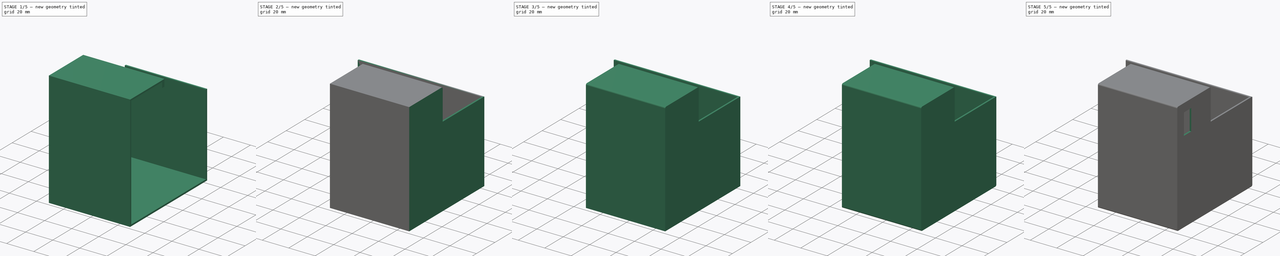
[diagram: build sequence overview — one tinted view per stage of 5, left to right]
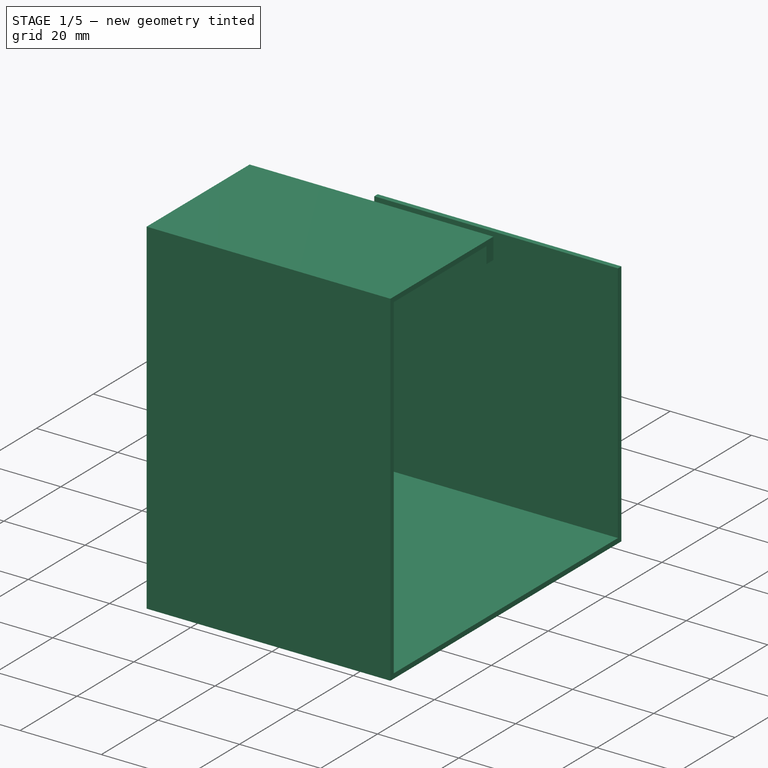
[diagram: stage 1 of 5 — iso view after this stage's code; geometry added in this stage tinted green]
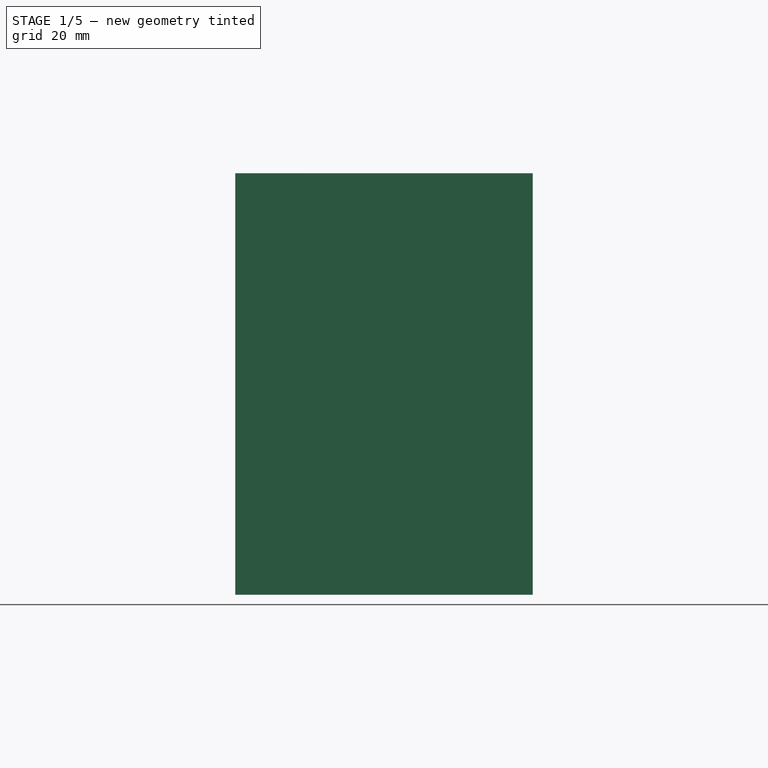
[diagram: stage 1 of 5 — front view after this stage's code; geometry added in this stage tinted green]
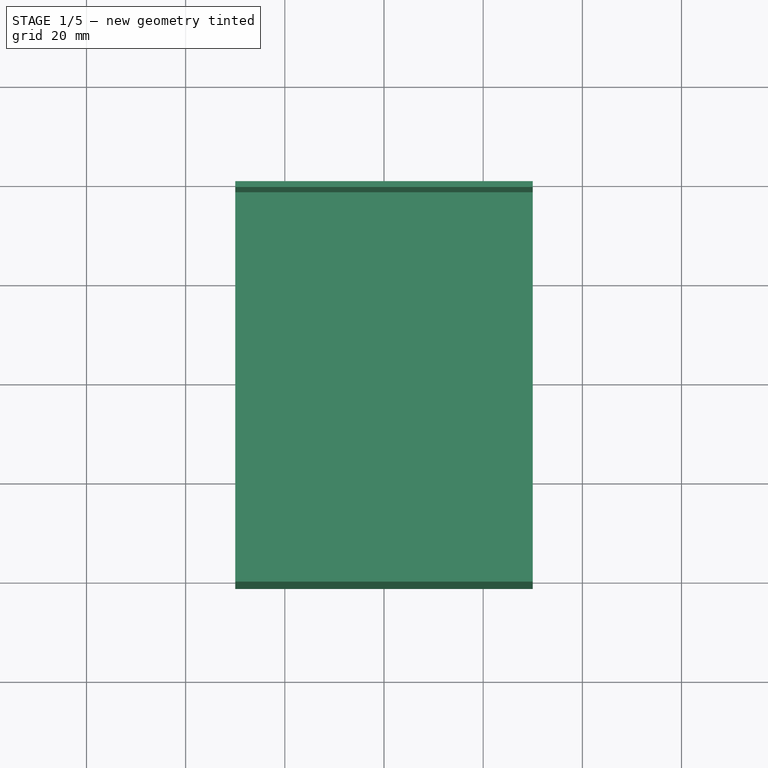
[diagram: stage 1 of 5 — top view after this stage's code; geometry added in this stage tinted green]
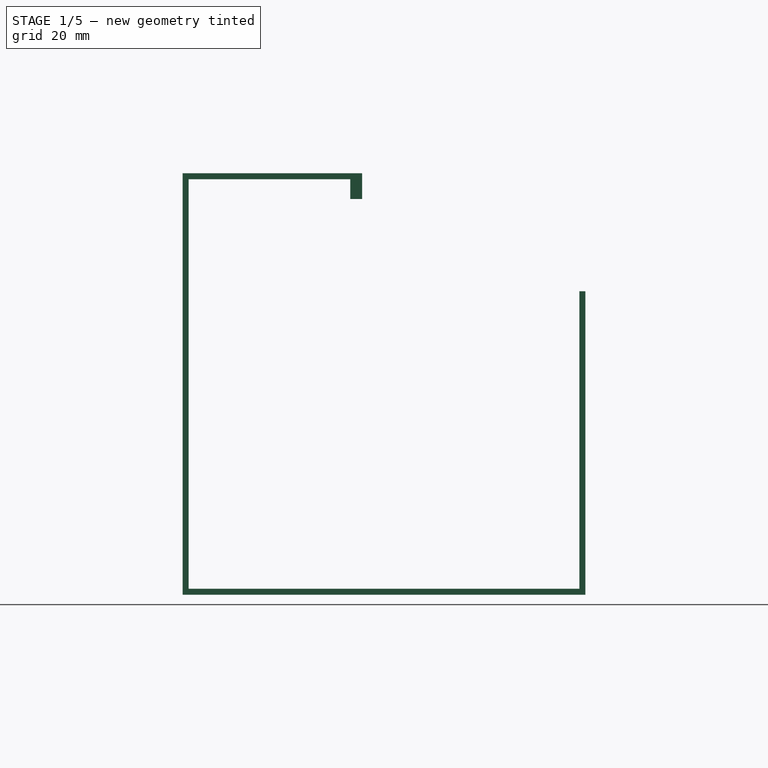
[diagram: stage 1 of 5 — right view after this stage's code; geometry added in this stage tinted green]
FCSTD DOCUMENT  (FreeCAD 1.0R39319 (Git))
Label: holder
License: All rights reserved
LicenseURL: https://en.wikipedia.org/wiki/All_rights_reserved
objects: PartDesign::Fillet×16, Sketcher::SketchObject×11, PartDesign::Pad×10, PartDesign::Pocket×1, PartDesign::Body×1
note: 104 computed .brp shape members not serialized (recipe doc carries the construction recipe); baked Part::Feature solids carry a one-line shape summary decoded from their .brp

FEATURE [Sketcher::SketchObject] Sketch
  ArcFitTolerance = 1e-06
  AttachmentSupport = -> [XZ_Plane]
  FullyConstrained = true
  MakeInternals = false
  MapMode = 5
  Placement = pos=(0,0,0) rot=(1,0,0;1.5708rad)
  sketch-geometry (5):
    g0: LineSegment StartX=-30 StartY=-42.5 StartZ=0 EndX=30 EndY=-42.5 EndZ=0
    g1: LineSegment StartX=30 StartY=-42.5 StartZ=0 EndX=30 EndY=42.5 EndZ=0
    g2: LineSegment StartX=30 StartY=42.5 StartZ=0 EndX=-30 EndY=42.5 EndZ=0
    g3: LineSegment StartX=-30 StartY=42.5 StartZ=0 EndX=-30 EndY=-42.5 EndZ=0
    g4: GeomPoint [constr] X=0 Y=0 Z=0
  constraints (12):
    c: Coincident(g0,g1)
    c: Coincident(g1,g2)
    c: Coincident(g2,g3)
    c: Coincident(g3,g0)
    c: Horizontal(g0)
    c: Horizontal(g2)
    c: Vertical(g1)
    c: Vertical(g3)
    c: Symmetric(g2,g0,g4)
    c: Coincident(g4,g-1)
    c: DistanceX(g2,g2) = 60
    c: DistanceY(g1,g1) = 85
FEATURE [PartDesign::Pad] Pad
  Direction = (0,-1,2e-16)
  Length = 1.2
  Length2 = 10
  Placement = pos=(0,0,0) rot=(1,0,0;1.5708rad)
  Profile = -> Sketch
  ReferenceAxis = -> Sketch [N_Axis]
  Refine = true
  Suppressed = false
  Type = 0
FEATURE [Sketcher::SketchObject] Sketch002
  ArcFitTolerance = 1e-06
  AttachmentSupport = -> [Pad]
  ExternalGeometry = -> [Pad]
  FullyConstrained = true
  MakeInternals = false
  MapMode = 5
  Placement = pos=(0,0,0) rot=(-1,0,0;1.5708rad)
  sketch-geometry (4):
    g0: LineSegment StartX=30 StartY=42.5 StartZ=0 EndX=-30 EndY=42.5 EndZ=0
    g1: LineSegment StartX=-30 StartY=42.5 StartZ=0 EndX=-30 EndY=41.3 EndZ=0
    g2: LineSegment StartX=-30 StartY=41.3 StartZ=0 EndX=30 EndY=41.3 EndZ=0
    g3: LineSegment StartX=30 StartY=41.3 StartZ=0 EndX=30 EndY=42.5 EndZ=0
  constraints (10):
    c: Coincident(g0,g1)
    c: Coincident(g1,g2)
    c: Coincident(g2,g3)
    c: Coincident(g3,g0)
    c: Horizontal(g2)
    c: Vertical(g1)
    c: Vertical(g3)
    c: Coincident(g-3,g0)
    c: Coincident(g0,g-3)
    c: DistanceY(g1,g1) = 1.2
FEATURE [PartDesign::Pad] Pad001
  BaseFeature = -> Pad
  Direction = (0,1,2e-16)
  Length = 80
  Length2 = 10
  Placement = pos=(0,0,0) rot=(1,0,0;1.5708rad)
  Profile = -> Sketch002
  ReferenceAxis = -> Sketch002 [N_Axis]
  Refine = true
  Suppressed = false
  Type = 0
FEATURE [Sketcher::SketchObject] Sketch003
  ArcFitTolerance = 1e-06
  AttachmentSupport = -> [Pad001]
  ExternalGeometry = -> [Pad001]
  FullyConstrained = true
  MakeInternals = false
  MapMode = 5
  Placement = pos=(0,9.2e-15,-41.3) rot=(0,0,1;3.14159rad)
  sketch-geometry (4):
    g0: LineSegment StartX=-30 StartY=-80 StartZ=0 EndX=30 EndY=-80 EndZ=0
    g1: LineSegment StartX=30 StartY=-80 StartZ=0 EndX=30 EndY=-78.8 EndZ=0
    g2: LineSegment StartX=30 StartY=-78.8 StartZ=0 EndX=-30 EndY=-78.8 EndZ=0
    g3: LineSegment StartX=-30 StartY=-78.8 StartZ=0 EndX=-30 EndY=-80 EndZ=0
  constraints (10):
    c: Coincident(g0,g1)
    c: Coincident(g1,g2)
    c: Coincident(g2,g3)
    c: Coincident(g3,g0)
    c: Horizontal(g2)
    c: Vertical(g1)
    c: Vertical(g3)
    c: Coincident(g0,g-3)
    c: Coincident(g-3,g0)
    c: DistanceY(g1,g1) = 1.2
FEATURE [PartDesign::Pad] Pad002
  BaseFeature = -> Pad001
  Direction = (0,0,1)
  Length = 60
  Length2 = 10
  Placement = pos=(0,0,0) rot=(1,0,0;1.5708rad)
  Profile = -> Sketch003
  ReferenceAxis = -> Sketch003 [N_Axis]
  Refine = true
  Suppressed = false
  Type = 0
FEATURE [Sketcher::SketchObject] Sketch004
  ArcFitTolerance = 1e-06
  AttachmentSupport = -> [Pad002]
  ExternalGeometry = -> [Pad002]
  FullyConstrained = true
  MakeInternals = false
  MapMode = 5
  Placement = pos=(0,0,0) rot=(-1,0,0;1.5708rad)
  sketch-geometry (4):
    g0: LineSegment StartX=30 StartY=-42.5 StartZ=0 EndX=30 EndY=-41.3 EndZ=0
    g1: LineSegment StartX=30 StartY=-41.3 StartZ=0 EndX=-30 EndY=-41.3 EndZ=0
    g2: LineSegment StartX=-30 StartY=-41.3 StartZ=0 EndX=-30 EndY=-42.5 EndZ=0
    g3: LineSegment StartX=-30 StartY=-42.5 StartZ=0 EndX=30 EndY=-42.5 EndZ=0
  constraints (10):
    c: Coincident(g0,g1)
    c: Coincident(g1,g2)
    c: Coincident(g2,g3)
    c: Coincident(g3,g0)
    c: Vertical(g0)
    c: Vertical(g2)
    c: Horizontal(g1)
    c: Coincident(g0,g-3)
    c: Coincident(g-3,g2)
    c: DistanceY(g2,g2) = 1.2
FEATURE [PartDesign::Pad] Pad003
  BaseFeature = -> Pad002
  Direction = (0,1,2e-16)
  Length = 35
  Length2 = 10
  Placement = pos=(0,0,0) rot=(1,0,0;1.5708rad)
  Profile = -> Sketch004
  ReferenceAxis = -> Sketch004 [N_Axis]
  Refine = true
  Suppressed = false
  Type = 0
FEATURE [Sketcher::SketchObject] Sketch006
  ArcFitTolerance = 1e-06
  AttachmentSupport = -> [Pad003]
  ExternalGeometry = -> [Pad003]
  FullyConstrained = true
  MakeInternals = false
  MapMode = 5
  Placement = pos=(0,-9.2e-15,41.3) rot=(1,0,0;3.14159rad)
  sketch-geometry (4):
    g0: LineSegment StartX=-30 StartY=-35 StartZ=0 EndX=30 EndY=-35 EndZ=0
    g1: LineSegment StartX=30 StartY=-35 StartZ=0 EndX=30 EndY=-32.6 EndZ=0
    g2: LineSegment StartX=30 StartY=-32.6 StartZ=0 EndX=-30 EndY=-32.6 EndZ=0
    g3: LineSegment StartX=-30 StartY=-32.6 StartZ=0 EndX=-30 EndY=-35 EndZ=0
  constraints (10):
    c: Coincident(g0,g1)
    c: Coincident(g1,g2)
    c: Coincident(g2,g3)
    c: Coincident(g3,g0)
    c: Horizontal(g2)
    c: Vertical(g1)
    c: Vertical(g3)
    c: Coincident(g0,g-3)
    c: Coincident(g-3,g0)
    c: DistanceY(g3,g3) = 2.4
FEATURE [PartDesign::Pad] Pad004
  BaseFeature = -> Pad003
  Direction = (0,0,-1)
  Length = 4
  Length2 = 10
  Placement = pos=(0,0,0) rot=(1,0,0;1.5708rad)
  Profile = -> Sketch006
  ReferenceAxis = -> Sketch006 [N_Axis]
  Refine = true
  Suppressed = false
  Type = 0
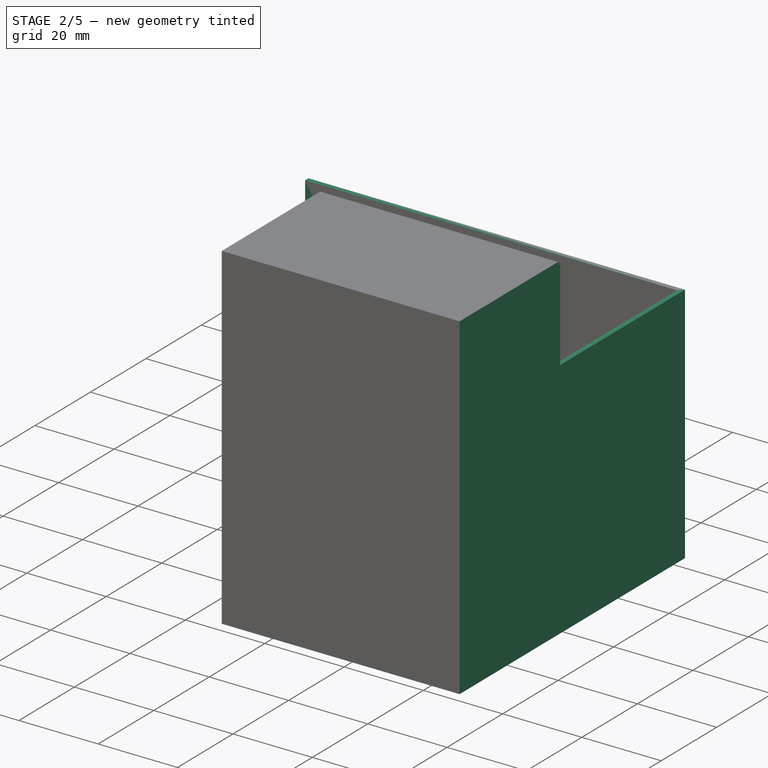
[diagram: stage 2 of 5 — iso view after this stage's code; geometry added in this stage tinted green]
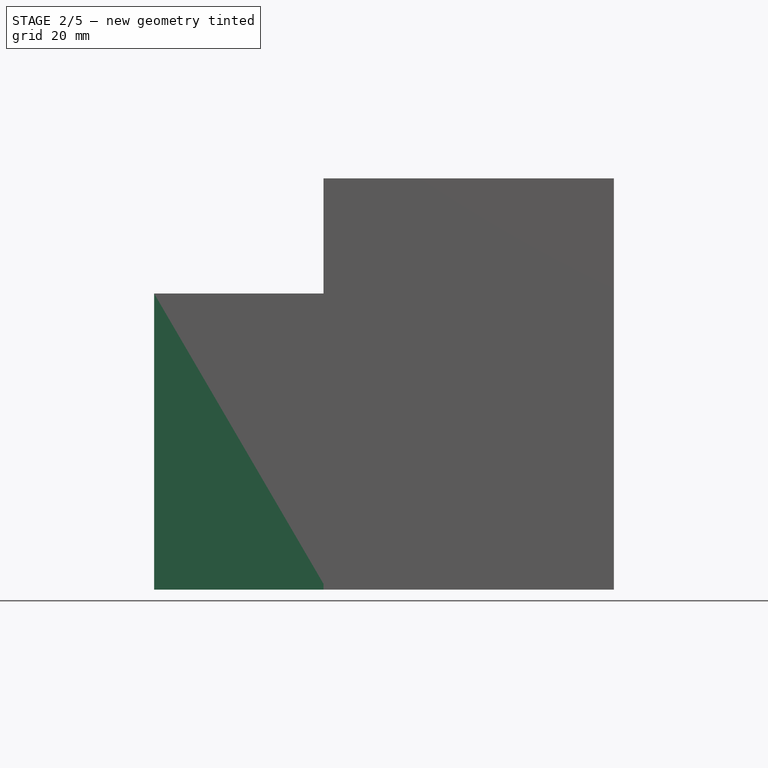
[diagram: stage 2 of 5 — front view after this stage's code; geometry added in this stage tinted green]
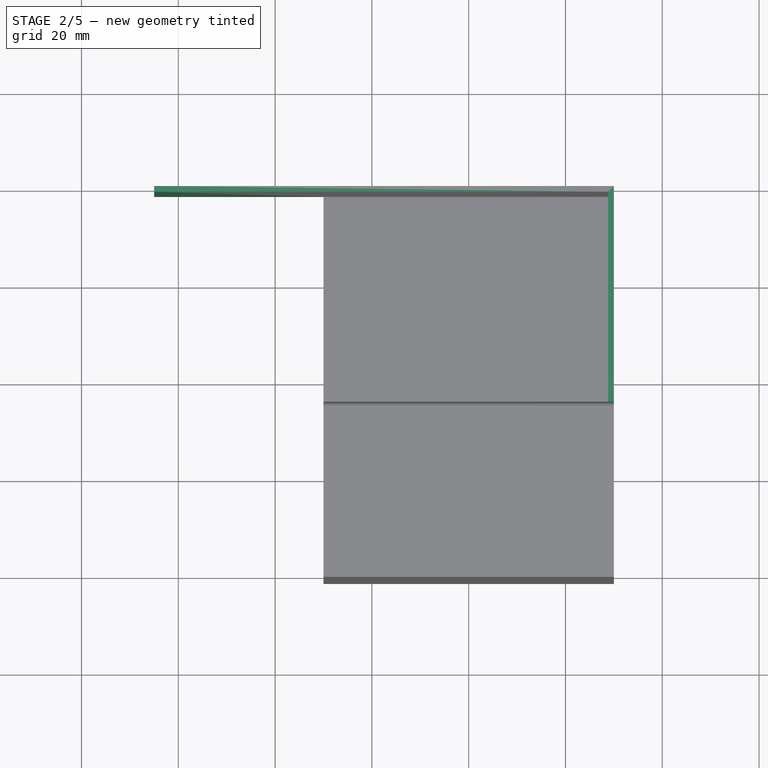
[diagram: stage 2 of 5 — top view after this stage's code; geometry added in this stage tinted green]
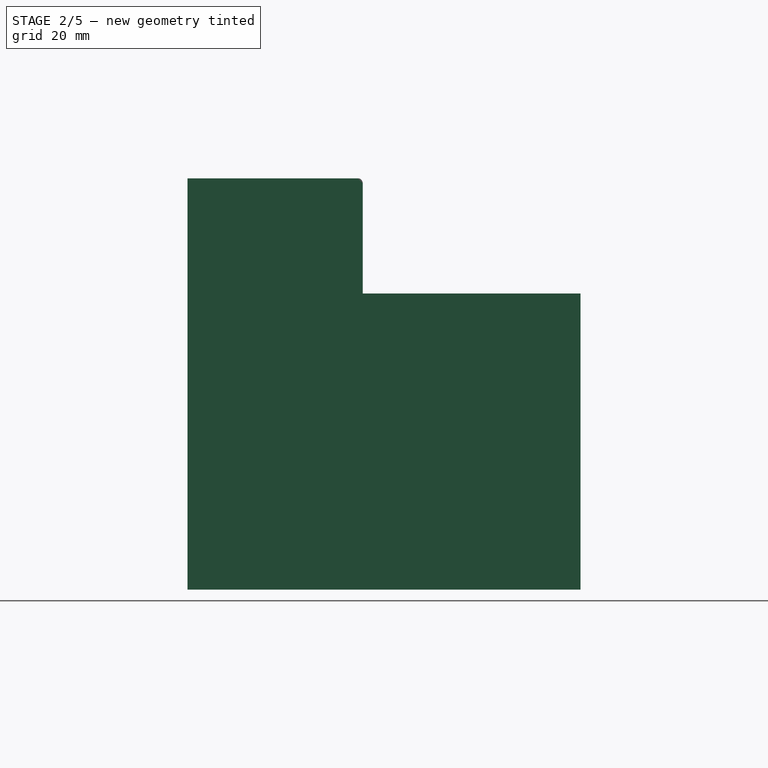
[diagram: stage 2 of 5 — right view after this stage's code; geometry added in this stage tinted green]
FEATURE [Sketcher::SketchObject] Sketch005
  ArcFitTolerance = 1e-06
  AttachmentSupport = -> [Pad004]
  ExternalGeometry = -> [Pad003]
  FullyConstrained = true
  MakeInternals = false
  MapMode = 5
  Placement = pos=(0,0,37.3) rot=(1,0,0;3.14159rad)
  sketch-geometry (8):
    g0: LineSegment StartX=30 StartY=-35 StartZ=0 EndX=30 EndY=-32.6 EndZ=0
    g1: LineSegment StartX=30 StartY=-32.6 StartZ=0 EndX=18.3 EndY=-32.6 EndZ=0
    g2: LineSegment StartX=18.3 StartY=-32.6 StartZ=0 EndX=18.3 EndY=-35 EndZ=0
    g3: LineSegment StartX=18.3 StartY=-35 StartZ=0 EndX=30 EndY=-35 EndZ=0
    g4: LineSegment StartX=-30 StartY=-35 StartZ=0 EndX=-18.3 EndY=-35 EndZ=0
    g5: LineSegment StartX=-18.3 StartY=-35 StartZ=0 EndX=-18.3 EndY=-32.6 EndZ=0
    g6: LineSegment StartX=-18.3 StartY=-32.6 StartZ=0 EndX=-30 EndY=-32.6 EndZ=0
    g7: LineSegment StartX=-30 StartY=-32.6 StartZ=0 EndX=-30 EndY=-35 EndZ=0
  constraints (22):
    c: Coincident(g0,g1)
    c: Coincident(g1,g2)
    c: Coincident(g2,g3)
    c: Coincident(g3,g0)
    c: Vertical(g0)
    c: Vertical(g2)
    c: Horizontal(g1)
    c: Horizontal(g3)
    c: Coincident(g0,g-3)
    c: Coincident(g4,g5)
    c: Coincident(g5,g6)
    c: Coincident(g6,g7)
    c: Coincident(g7,g4)
    c: Horizontal(g4)
    c: Horizontal(g6)
    c: Vertical(g5)
    c: Vertical(g7)
    c: Coincident(g4,g-3)
    c: DistanceY(g0,g0) = 2.4
    c: DistanceX(g4,g2) = 36.6
    c: DistanceY(g4,g6) = 2.4
    c: DistanceX(g1,g1) = 11.7
FEATURE [PartDesign::Pad] Pad005
  BaseFeature = -> Pad004
  Direction = (0,0,-1)
  Length = 18.6
  Length2 = 10
  Placement = pos=(0,0,0) rot=(1,0,0;1.5708rad)
  Profile = -> Sketch005
  ReferenceAxis = -> Sketch005 [N_Axis]
  Refine = true
  Suppressed = false
  Type = 0
FEATURE [Sketcher::SketchObject] Sketch007
  ArcFitTolerance = 1e-06
  AttachmentSupport = -> [Pad005]
  ExternalGeometry = -> [Pad005]
  FullyConstrained = true
  MakeInternals = false
  MapMode = 5
  Placement = pos=(-18.3,0,0) rot=(0.707107,0,0.707107;3.14159rad)
  sketch-geometry (4):
    g0: LineSegment StartX=19.5 StartY=-33.4 StartZ=0 EndX=19.5 EndY=-34.2 EndZ=0
    g1: LineSegment StartX=19.5 StartY=-34.2 StartZ=0 EndX=36.5 EndY=-34.2 EndZ=0
    g2: LineSegment StartX=36.5 StartY=-34.2 StartZ=0 EndX=36.5 EndY=-33.4 EndZ=0
    g3: LineSegment StartX=36.5 StartY=-33.4 StartZ=0 EndX=19.5 EndY=-33.4 EndZ=0
  constraints (12):
    c: Coincident(g0,g1)
    c: Coincident(g1,g2)
    c: Coincident(g2,g3)
    c: Coincident(g3,g0)
    c: Vertical(g0)
    c: Vertical(g2)
    c: Horizontal(g1)
    c: Horizontal(g3)
    c: DistanceX(g-4,g0) = 0.8
    c: DistanceX(g1,g-6) = 0.8
    c: DistanceY(g-5,g0) = 0.8
    c: DistanceY(g2,g-6) = 0.8
FEATURE [PartDesign::Pad] Pad006
  BaseFeature = -> Pad005
  Direction = (1,0,-2e-16)
  Length = 10
  Length2 = 10
  Placement = pos=(0,0,0) rot=(1,0,0;1.5708rad)
  Profile = -> Sketch007
  ReferenceAxis = -> Sketch007 [N_Axis]
  Refine = true
  Suppressed = false
  Type = 2
FEATURE [Sketcher::SketchObject] Sketch009
  ArcFitTolerance = 1e-06
  AttachmentSupport = -> [Pad006]
  ExternalGeometry = -> [Pad006]
  FullyConstrained = true
  MakeInternals = false
  MapMode = 5
  Placement = pos=(-30,0,0) rot=(0.707107,0,-0.707107;3.14159rad)
  sketch-geometry (4):
    g0: LineSegment StartX=-18.7 StartY=-78.8 StartZ=0 EndX=-18.7 EndY=-80 EndZ=0
    g1: LineSegment StartX=-18.7 StartY=-80 StartZ=0 EndX=42.5 EndY=-80 EndZ=0
    g2: LineSegment StartX=42.5 StartY=-80 StartZ=0 EndX=42.5 EndY=-78.8 EndZ=0
    g3: LineSegment StartX=42.5 StartY=-78.8 StartZ=0 EndX=-18.7 EndY=-78.8 EndZ=0
  constraints (10):
    c: Coincident(g0,g1)
    c: Coincident(g1,g2)
    c: Coincident(g2,g3)
    c: Coincident(g3,g0)
    c: Vertical(g0)
    c: Vertical(g2)
    c: Horizontal(g1)
    c: Horizontal(g3)
    c: Coincident(g0,g-3)
    c: Coincident(g1,g-4)
FEATURE [PartDesign::Pad] Pad007
  BaseFeature = -> Pad006
  Direction = (-1,0,-2e-16)
  Length = 35
  Length2 = 10
  Placement = pos=(0,0,0) rot=(1,0,0;1.5708rad)
  Profile = -> Sketch009
  ReferenceAxis = -> Sketch009 [N_Axis]
  Refine = true
  Suppressed = false
  Type = 0
FEATURE [Sketcher::SketchObject] Sketch010
  ArcFitTolerance = 1e-06
  AttachmentSupport = -> [Pad007]
  ExternalGeometry = -> [Pad007]
  FullyConstrained = true
  MakeInternals = false
  MapMode = 5
  Placement = pos=(-8.88e-14,78.8,-2e-15) rot=(1,0,0;1.5708rad)
  sketch-geometry (4):
    g0: LineSegment StartX=30 StartY=18.7 StartZ=0 EndX=28.8 EndY=18.7 EndZ=0
    g1: LineSegment StartX=28.8 StartY=18.7 StartZ=0 EndX=28.8 EndY=-41.3 EndZ=0
    g2: LineSegment StartX=28.8 StartY=-41.3 StartZ=0 EndX=30 EndY=-41.3 EndZ=0
    g3: LineSegment StartX=30 StartY=-41.3 StartZ=0 EndX=30 EndY=18.7 EndZ=0
  constraints (10):
    c: Coincident(g0,g1)
    c: Coincident(g1,g2)
    c: Coincident(g2,g3)
    c: Coincident(g3,g0)
    c: Horizontal(g0)
    c: Horizontal(g2)
    c: Vertical(g1)
    c: Coincident(g0,g-3)
    c: Coincident(g2,g-3)
    c: Distance(g0,g0) = 1.2
FEATURE [PartDesign::Pad] Pad008
  BaseFeature = -> Pad007
  Direction = (1.1e-15,-1,2e-16)
  Length = 10
  Length2 = 10
  Placement = pos=(0,0,0) rot=(1,0,0;1.5708rad)
  Profile = -> Sketch010
  ReferenceAxis = -> Sketch010 [N_Axis]
  Refine = true
  Suppressed = false
  Type = 2
FEATURE [Sketcher::SketchObject] Sketch011
  ArcFitTolerance = 1e-06
  AttachmentSupport = -> [Pad008]
  ExternalGeometry = -> [Pad008]
  FullyConstrained = true
  MakeInternals = false
  MapMode = 5
  Placement = pos=(0,32.6,-8.5e-15) rot=(1,0,0;1.5708rad)
  sketch-geometry (4):
    g0: LineSegment StartX=30 StartY=41.3 StartZ=0 EndX=28.8 EndY=41.3 EndZ=0
    g1: LineSegment StartX=28.8 StartY=41.3 StartZ=0 EndX=28.8 EndY=18.7 EndZ=0
    g2: LineSegment StartX=28.8 StartY=18.7 StartZ=0 EndX=30 EndY=18.7 EndZ=0
    g3: LineSegment StartX=30 StartY=18.7 StartZ=0 EndX=30 EndY=41.3 EndZ=0
  constraints (10):
    c: Coincident(g0,g1)
    c: Coincident(g1,g2)
    c: Coincident(g2,g3)
    c: Coincident(g3,g0)
    c: Horizontal(g0)
    c: Horizontal(g2)
    c: Vertical(g1)
    c: Coincident(g0,g-3)
    c: Coincident(g-3,g2)
    c: Distance(g2,g2) = 1.2
FEATURE [PartDesign::Pad] Pad009
  BaseFeature = -> Pad008
  Direction = (0,-1,2e-16)
  Length = 10
  Length2 = 10
  Placement = pos=(0,0,0) rot=(1,0,0;1.5708rad)
  Profile = -> Sketch011
  ReferenceAxis = -> Sketch011 [N_Axis]
  Refine = true
  Suppressed = false
  Type = 2
FEATURE [PartDesign::Fillet] Fillet
  Base = -> Pad009 [Edge27]
  BaseFeature = -> Pad009
  Placement = pos=(0,0,0) rot=(1,0,0;1.5708rad)
  Radius = 1
  Refine = true
  SupportTransform = false
  Suppressed = false
  UseAllEdges = false
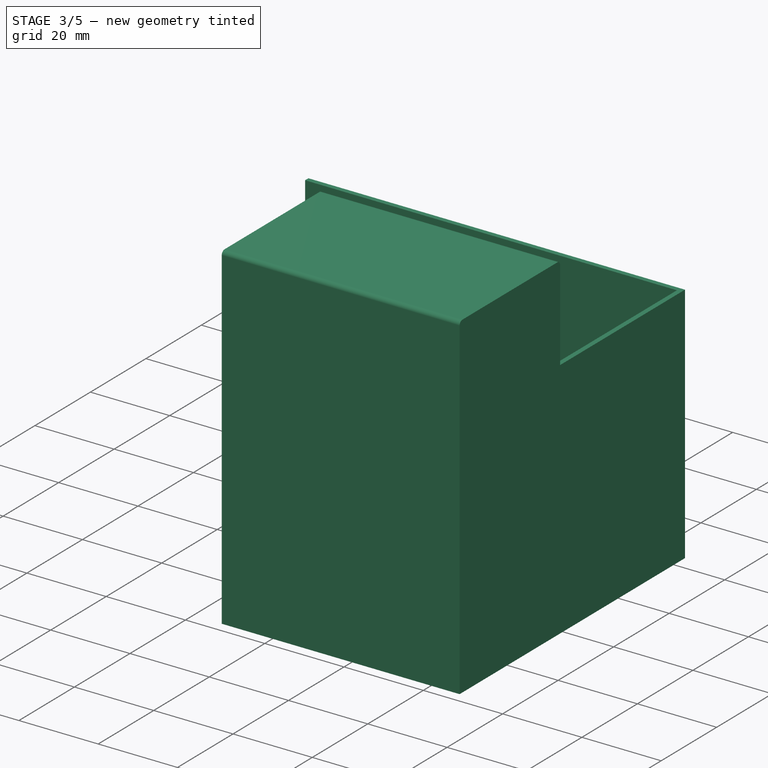
[diagram: stage 3 of 5 — iso view after this stage's code; geometry added in this stage tinted green]
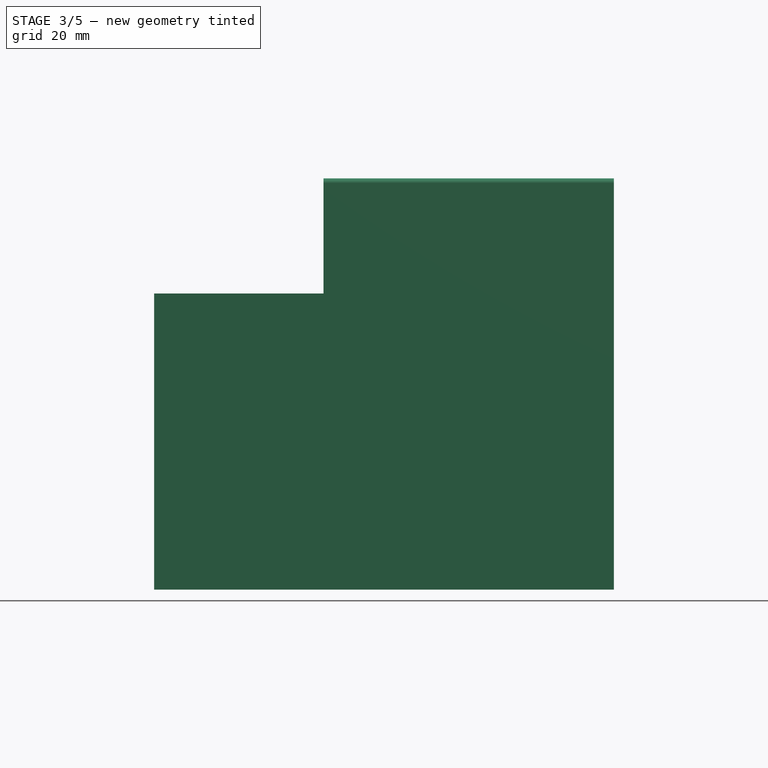
[diagram: stage 3 of 5 — front view after this stage's code; geometry added in this stage tinted green]
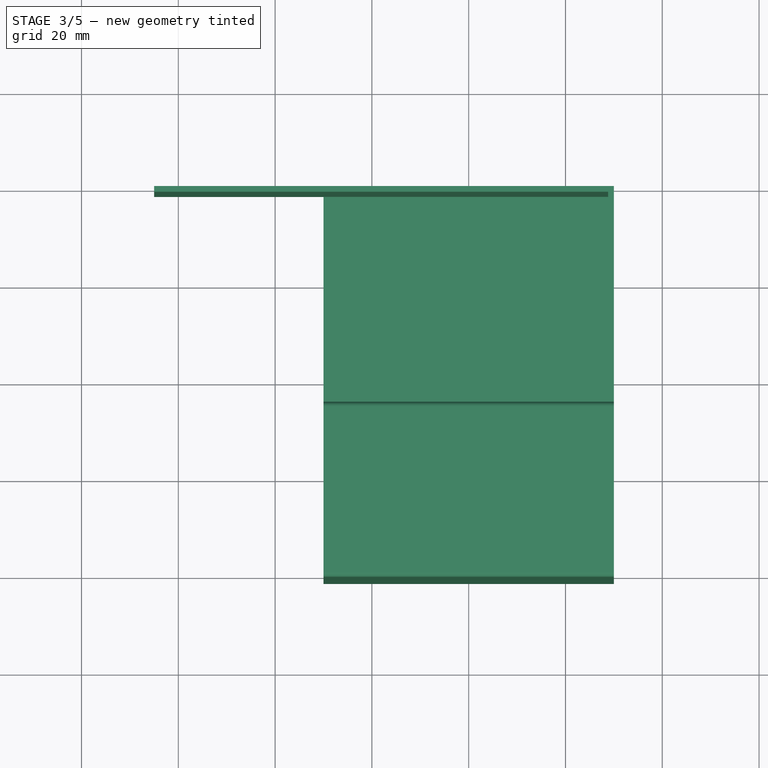
[diagram: stage 3 of 5 — top view after this stage's code; geometry added in this stage tinted green]
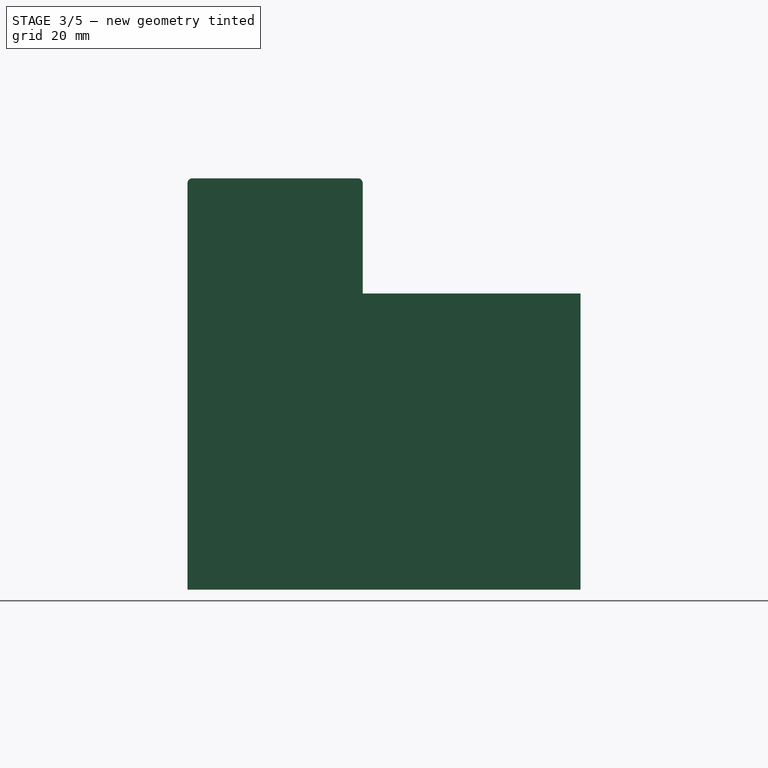
[diagram: stage 3 of 5 — right view after this stage's code; geometry added in this stage tinted green]
FEATURE [PartDesign::Fillet] Fillet001
  Base = -> Fillet [Edge14]
  BaseFeature = -> Fillet
  Placement = pos=(0,0,0) rot=(1,0,0;1.5708rad)
  Radius = 1
  Refine = true
  SupportTransform = false
  Suppressed = false
  UseAllEdges = false
FEATURE [PartDesign::Fillet] Fillet002
  Base = -> Fillet001 [Edge47]
  BaseFeature = -> Fillet001
  Placement = pos=(0,0,0) rot=(1,0,0;1.5708rad)
  Radius = 1
  Refine = true
  SupportTransform = false
  Suppressed = false
  UseAllEdges = false
FEATURE [PartDesign::Fillet] Fillet003
  Base = -> Fillet002 [Edge15]
  BaseFeature = -> Fillet002
  Placement = pos=(0,0,0) rot=(1,0,0;1.5708rad)
  Radius = 1
  Refine = true
  SupportTransform = false
  Suppressed = false
  UseAllEdges = false
FEATURE [PartDesign::Fillet] Fillet004
  Base = -> Fillet003 [Edge25]
  BaseFeature = -> Fillet003
  Placement = pos=(0,0,0) rot=(1,0,0;1.5708rad)
  Radius = 1
  Refine = true
  SupportTransform = false
  Suppressed = false
  UseAllEdges = false
FEATURE [PartDesign::Fillet] Fillet005
  Base = -> Fillet004 [Edge28]
  BaseFeature = -> Fillet004
  Placement = pos=(0,0,0) rot=(1,0,0;1.5708rad)
  Radius = 1
  Refine = true
  SupportTransform = false
  Suppressed = false
  UseAllEdges = false
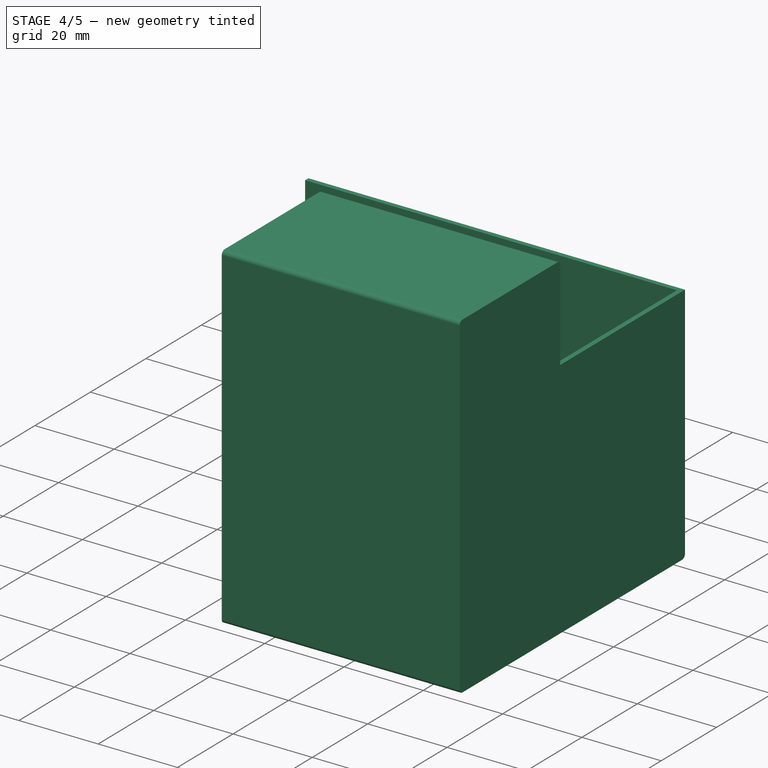
[diagram: stage 4 of 5 — iso view after this stage's code; geometry added in this stage tinted green]
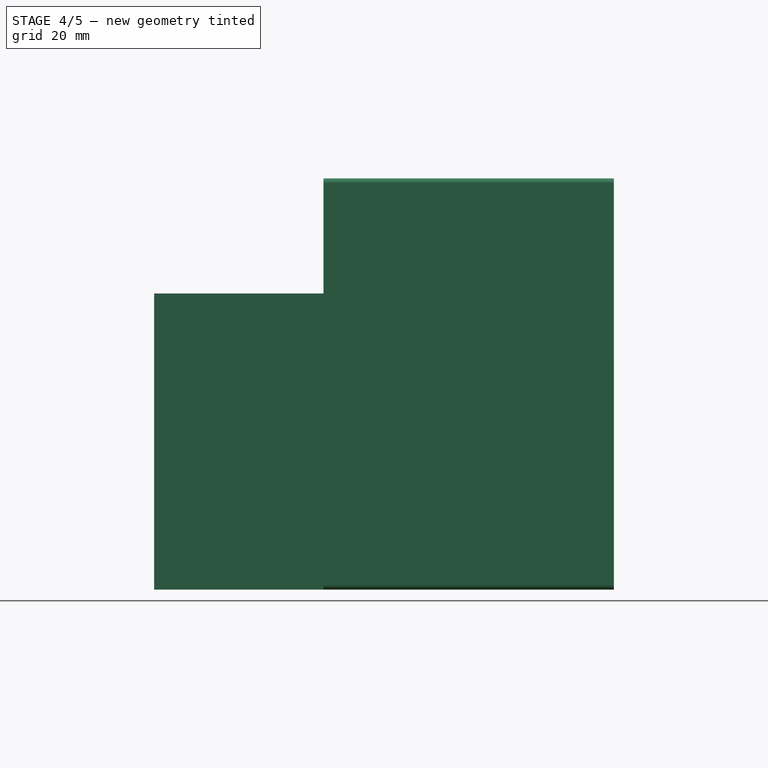
[diagram: stage 4 of 5 — front view after this stage's code; geometry added in this stage tinted green]
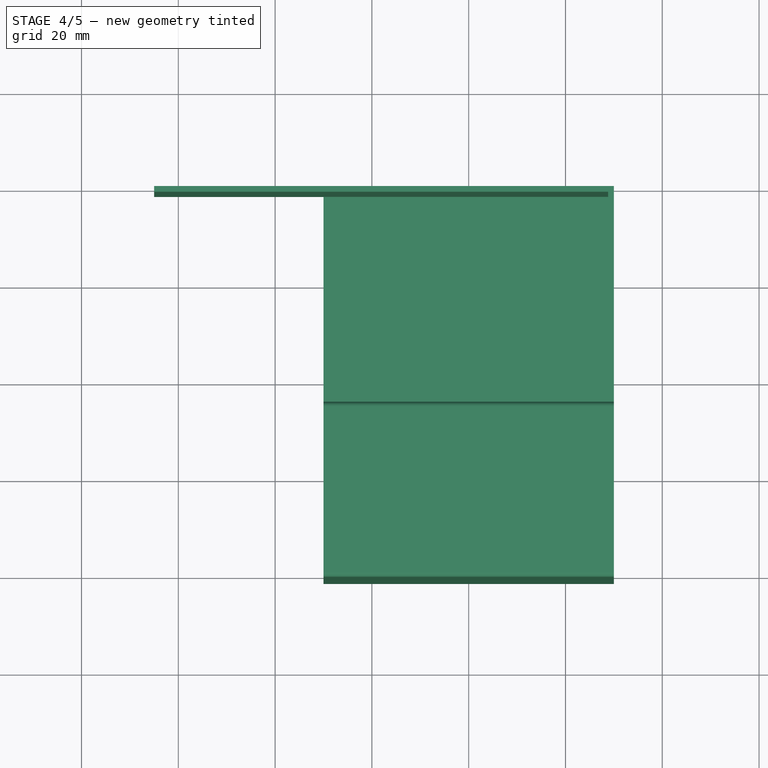
[diagram: stage 4 of 5 — top view after this stage's code; geometry added in this stage tinted green]
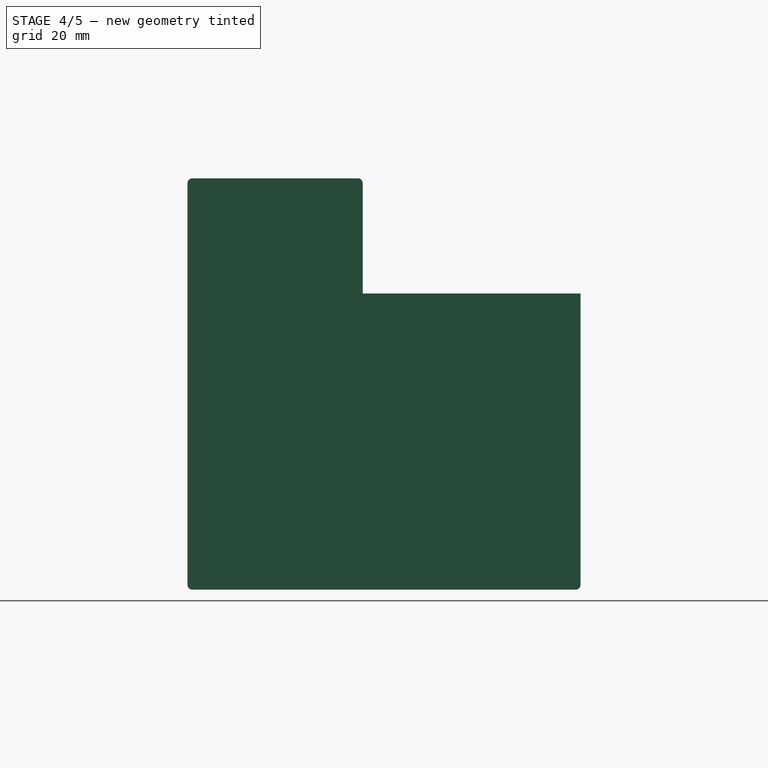
[diagram: stage 4 of 5 — right view after this stage's code; geometry added in this stage tinted green]
FEATURE [PartDesign::Fillet] Fillet006
  Base = -> Fillet005 [Edge30]
  BaseFeature = -> Fillet005
  Placement = pos=(0,0,0) rot=(1,0,0;1.5708rad)
  Radius = 1
  Refine = true
  SupportTransform = false
  Suppressed = false
  UseAllEdges = false
FEATURE [PartDesign::Fillet] Fillet007
  Base = -> Fillet006 [Edge67]
  BaseFeature = -> Fillet006
  Placement = pos=(0,0,0) rot=(1,0,0;1.5708rad)
  Radius = 1
  Refine = true
  SupportTransform = false
  Suppressed = false
  UseAllEdges = false
FEATURE [PartDesign::Fillet] Fillet008
  Base = -> Fillet007 [Edge21]
  BaseFeature = -> Fillet007
  Placement = pos=(0,0,0) rot=(1,0,0;1.5708rad)
  Radius = 1
  Refine = true
  SupportTransform = false
  Suppressed = false
  UseAllEdges = false
FEATURE [PartDesign::Fillet] Fillet009
  Base = -> Fillet008 [Edge14]
  BaseFeature = -> Fillet008
  Placement = pos=(0,0,0) rot=(1,0,0;1.5708rad)
  Radius = 1
  Refine = true
  SupportTransform = false
  Suppressed = false
  UseAllEdges = false
FEATURE [PartDesign::Fillet] Fillet010
  Base = -> Fillet009 [Edge93]
  BaseFeature = -> Fillet009
  Placement = pos=(0,0,0) rot=(1,0,0;1.5708rad)
  Radius = 1
  Refine = true
  SupportTransform = false
  Suppressed = false
  UseAllEdges = false
FEATURE [PartDesign::Fillet] Fillet011
  Base = -> Fillet010 [Edge28]
  BaseFeature = -> Fillet010
  Placement = pos=(0,0,0) rot=(1,0,0;1.5708rad)
  Radius = 1
  Refine = true
  SupportTransform = false
  Suppressed = false
  UseAllEdges = false
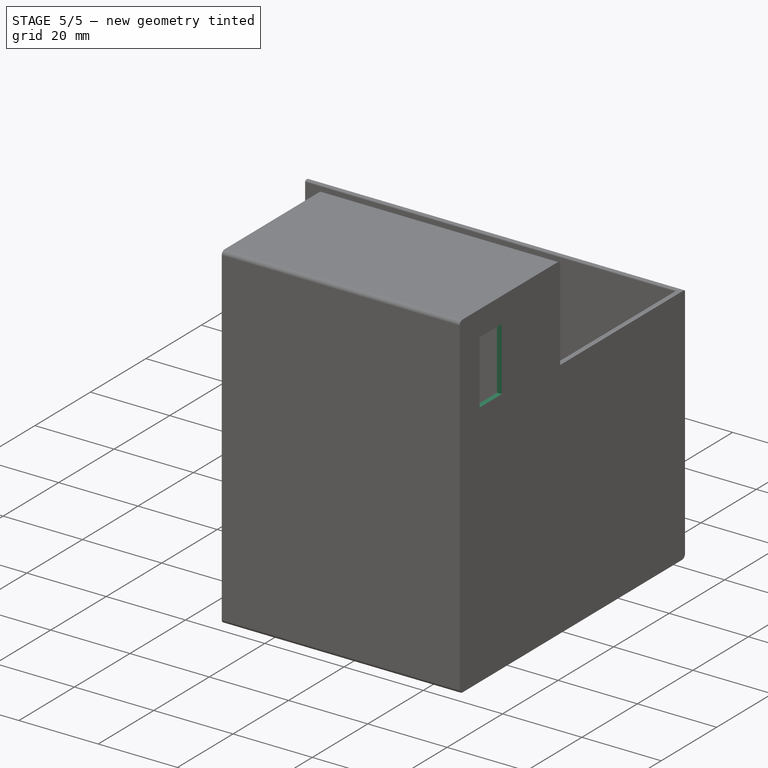
[diagram: stage 5 of 5 — iso view after this stage's code; geometry added in this stage tinted green]
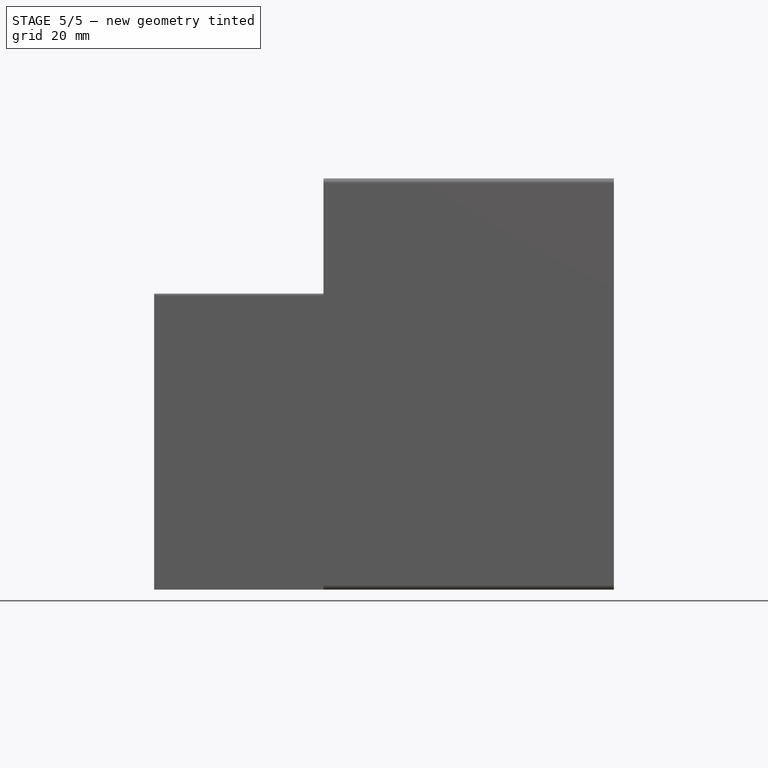
[diagram: stage 5 of 5 — front view after this stage's code; geometry added in this stage tinted green]
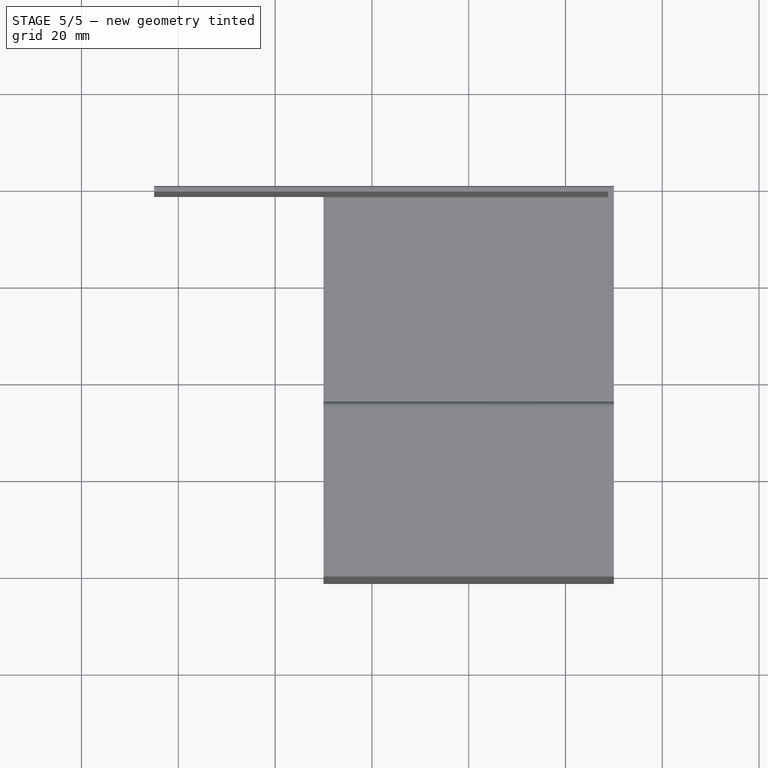
[diagram: stage 5 of 5 — top view after this stage's code; geometry added in this stage tinted green]
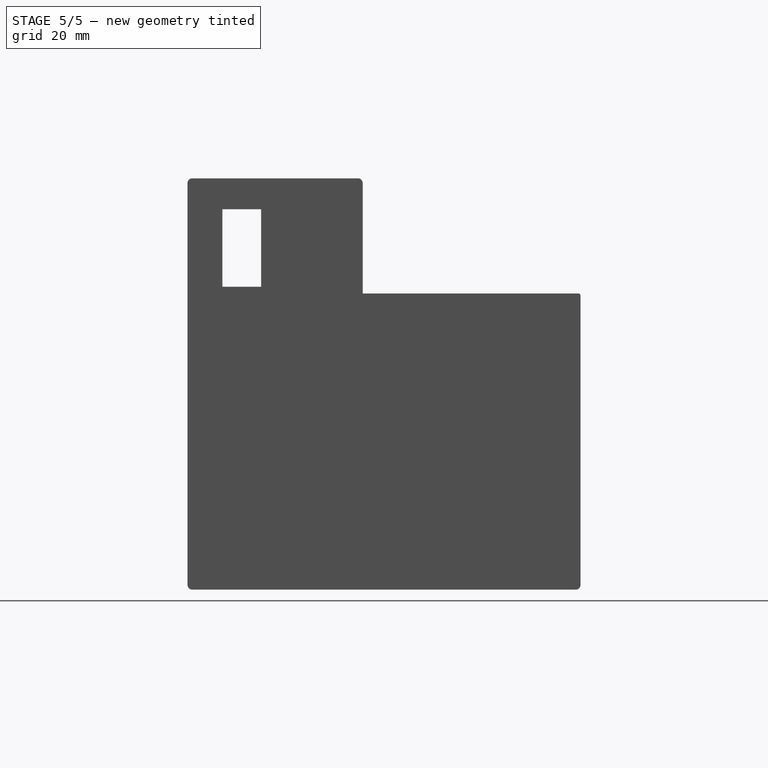
[diagram: stage 5 of 5 — right view after this stage's code; geometry added in this stage tinted green]
FEATURE [PartDesign::Fillet] Fillet012
  Base = -> Fillet011 [Edge40]
  BaseFeature = -> Fillet011
  Placement = pos=(0,0,0) rot=(1,0,0;1.5708rad)
  Radius = 1
  Refine = true
  SupportTransform = false
  Suppressed = false
  UseAllEdges = false
FEATURE [PartDesign::Fillet] Fillet013
  Base = -> Fillet012 [Edge22]
  BaseFeature = -> Fillet012
  Placement = pos=(0,0,0) rot=(1,0,0;1.5708rad)
  Radius = 1
  Refine = true
  SupportTransform = false
  Suppressed = false
  UseAllEdges = false
FEATURE [PartDesign::Fillet] Fillet014
  Base = -> Fillet013 [Edge81]
  BaseFeature = -> Fillet013
  Placement = pos=(0,0,0) rot=(1,0,0;1.5708rad)
  Radius = 0.4
  Refine = true
  SupportTransform = false
  Suppressed = false
  UseAllEdges = false
FEATURE [PartDesign::Fillet] Fillet015
  Base = -> Fillet014 [Edge3]
  BaseFeature = -> Fillet014
  Placement = pos=(0,0,0) rot=(1,0,0;1.5708rad)
  Radius = 0.4
  Refine = true
  SupportTransform = false
  Suppressed = false
  UseAllEdges = false
FEATURE [Sketcher::SketchObject] Sketch012
  ArcFitTolerance = 1e-06
  AttachmentSupport = -> [Pad009]
  ExternalGeometry = -> [Pad009]
  FullyConstrained = true
  MakeInternals = false
  MapMode = 5
  Placement = pos=(30,0,0) rot=(0.707107,0,0.707107;3.14159rad)
  sketch-geometry (5):
    g0: LineSegment StartX=20.1 StartY=-6 StartZ=0 EndX=20.1 EndY=-14 EndZ=0
    g1: LineSegment StartX=20.1 StartY=-14 StartZ=0 EndX=36.1 EndY=-14 EndZ=0
    g2: LineSegment StartX=36.1 StartY=-14 StartZ=0 EndX=36.1 EndY=-6 EndZ=0
    g3: LineSegment StartX=36.1 StartY=-6 StartZ=0 EndX=20.1 EndY=-6 EndZ=0
    g4: GeomPoint X=28.1 Y=-10 Z=0
  constraints (13):
    c: Coincident(g0,g1)
    c: Coincident(g1,g2)
    c: Coincident(g2,g3)
    c: Coincident(g3,g0)
    c: Vertical(g0)
    c: Vertical(g2)
    c: Horizontal(g1)
    c: Horizontal(g3)
    c: Symmetric(g2,g0,g4)
    c: DistanceY(g2,g2) = 8
    c: DistanceX(g1,g1) = 16
    c: DistanceX(g2,g-3) = 5.2
    c: DistanceY(g2,g-3) = 6
FEATURE [PartDesign::Pocket] Pocket
  BaseFeature = -> Fillet015
  Direction = (-1,0,2e-16)
  Length = 5
  Length2 = 5
  Placement = pos=(0,0,0) rot=(1,0,0;1.5708rad)
  Profile = -> Sketch012
  ReferenceAxis = -> Sketch012 [N_Axis]
  Refine = true
  Suppressed = false
  Type = 1
FEATURE [PartDesign::Body] Body
  AllowCompound = false
  Group = -> [Sketch,Pad,Sketch002,Pad001,Sketch003,Pad002,Sketch004,Pad003,Sketch005,Sketch006,Pad004,Pad005,Sketch007,Pad006,Sketch009,Pad007,Sketch010,Pad008,Sketch011,Pad009,Fillet,Fillet001,Fillet002,Fillet003,Fillet004,Fillet005,Fillet006,Fillet007,Fillet008,Fillet009,Fillet010,Fillet011,Fillet012,Fillet013,Fillet014,Fillet015,Sketch012,Pocket]
  Origin = -> Origin
  Tip = -> Pocket
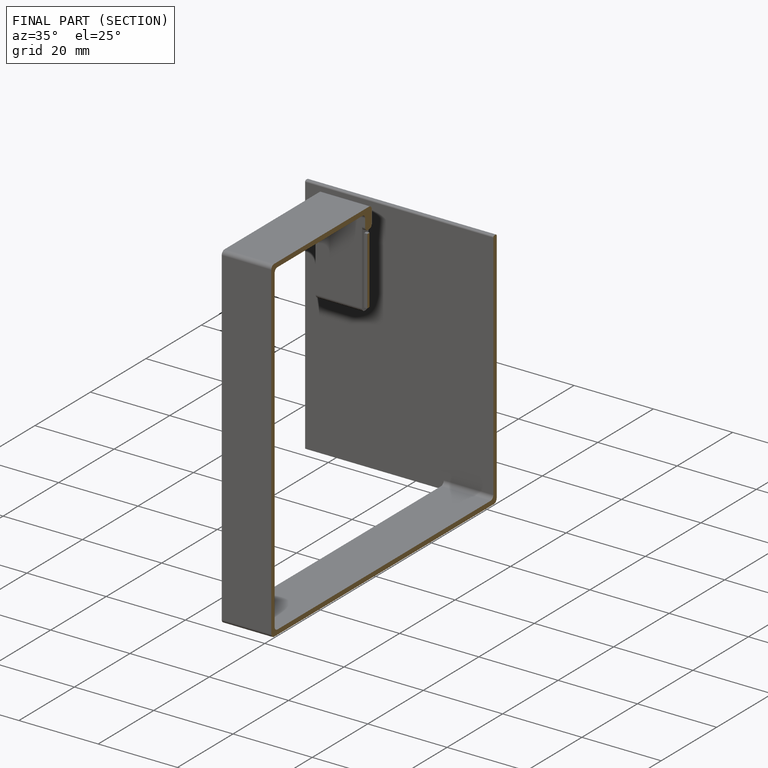
[diagram: finished part — half-section view (interior)]
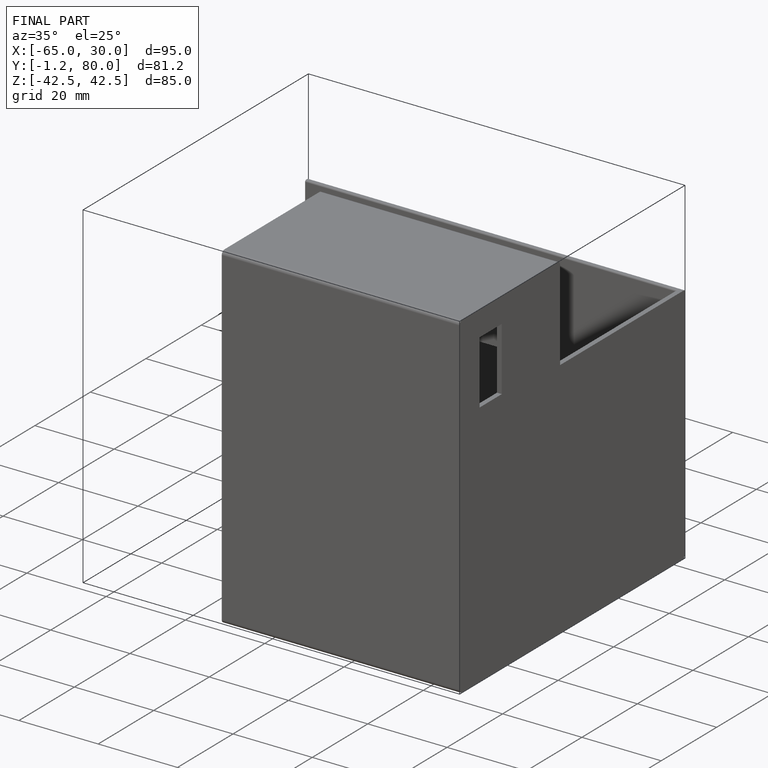
[diagram: finished part — iso view with bounding-box wireframe]
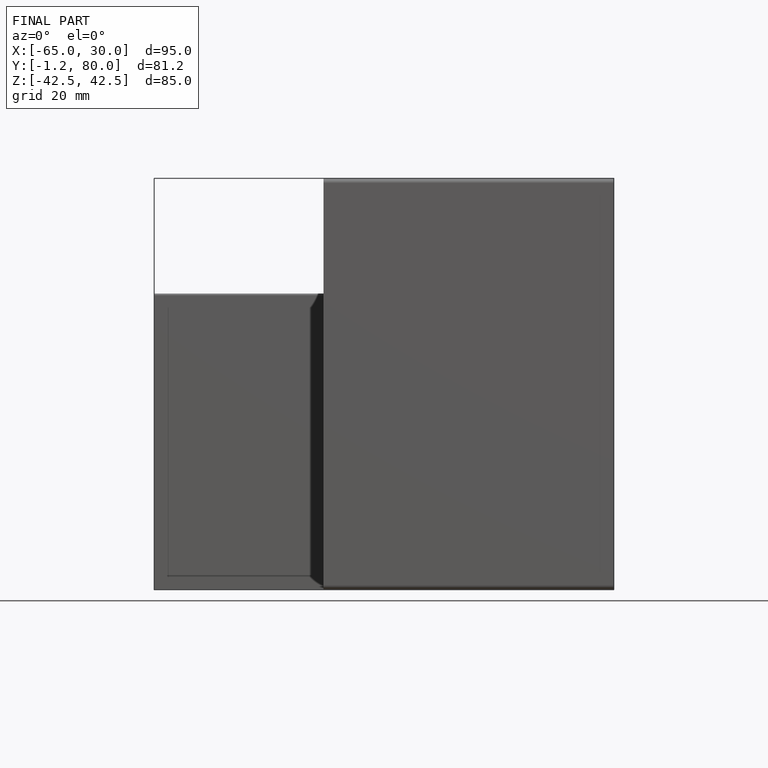
[diagram: finished part — front view with bounding-box wireframe]
